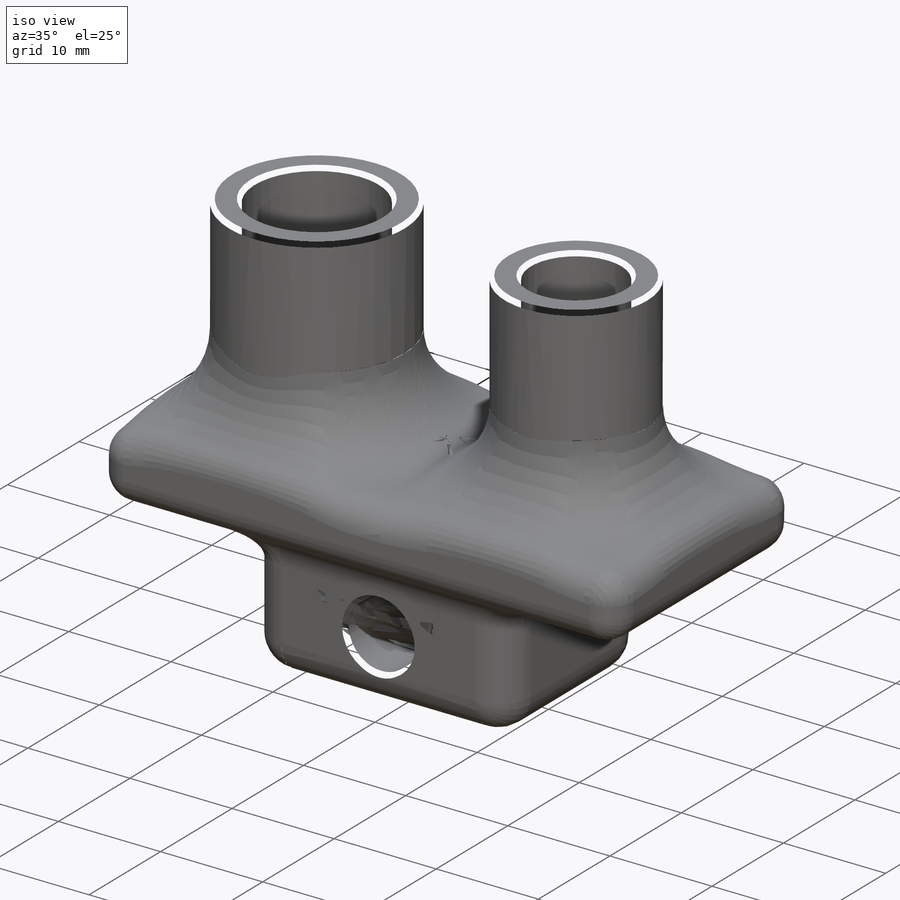
[diagram: iso view]
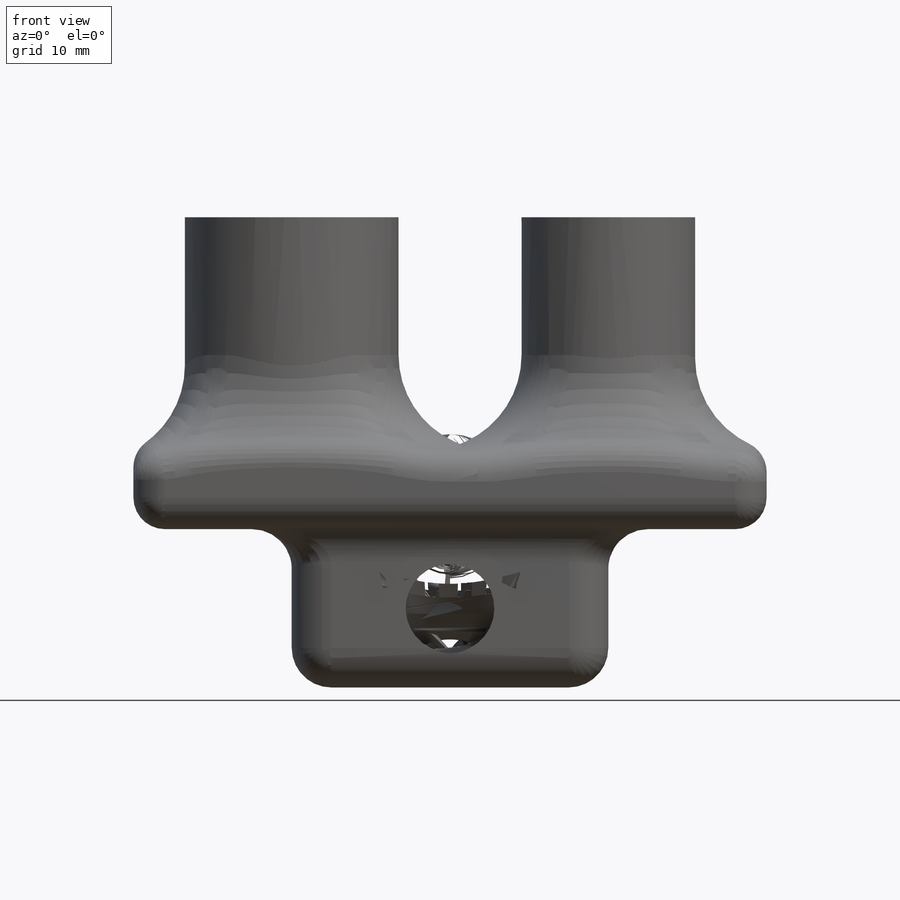
[diagram: front view]
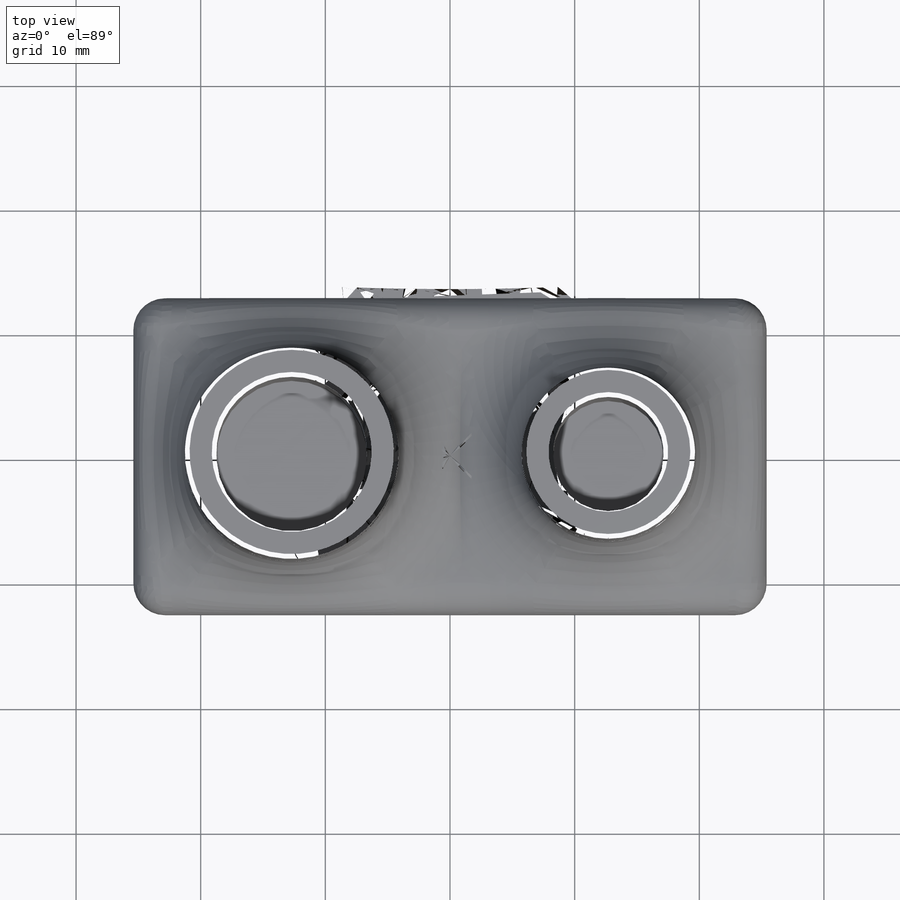
[diagram: top view]
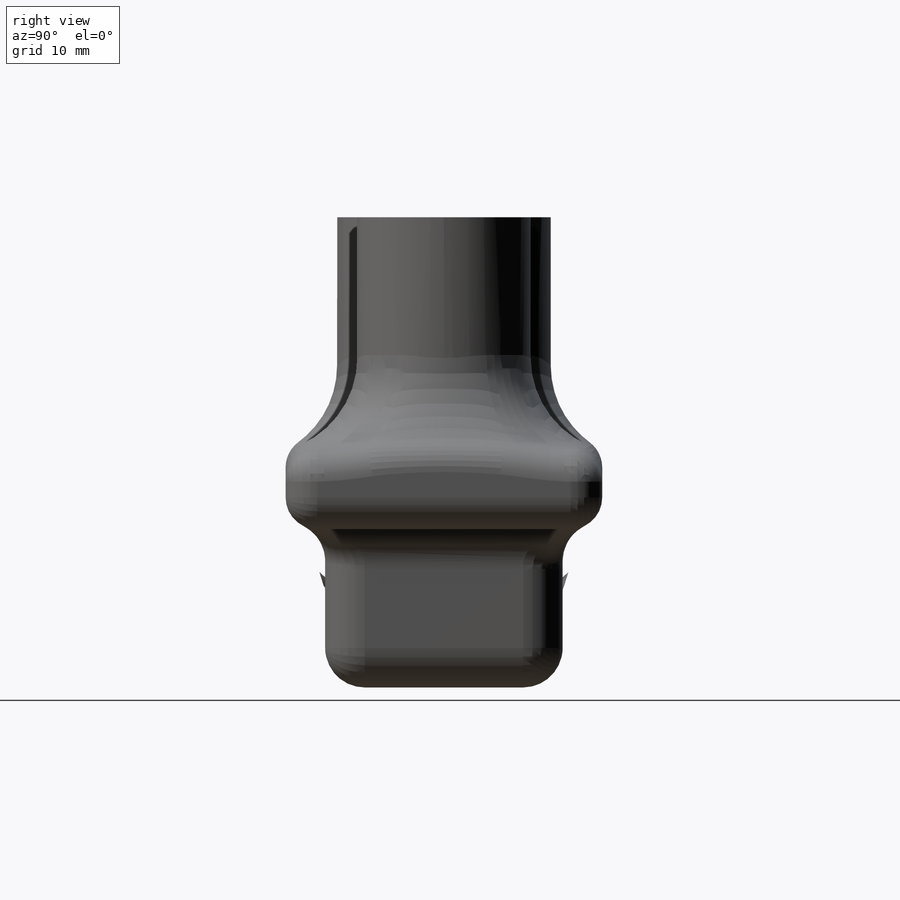
[diagram: right view]
SOLIDWORKS PART (.sldprt)
format: sldprt  version: not decoded by parser v0  size: 1,088,512 bytes
history: native  units: mm
features: fillet x8, sketch x4, extrude x3, material x1, cut_extrude x1 (+13 scaffold rows collapsed)
feature tree (30):
  scaffold x13  (default folders/planes/origin — collapsed)
  material  "ABS"
  sketch  "Sketch1"  dims[D1=8.8392mm D2=~43.957971mm D3=12.7mm D5=50.8mm D6=25.4mm D4=2.54mm]
  extrude  "Boss-Extrude1"  Depth=6.35mm
  extrude  "Boss-Extrude2"  [1 undecoded]
  sketch  "Sketch1<4>"  dims[D1=19.05mm]
  fillet  "Fillet1"  Radius=7.62mm
  fillet  "Fillet2"  Radius=2.54mm
  fillet  "Fillet3"  Radius=2.54mm
  sketch  "Sketch3"  dims[D3=6.35mm D1=25.4mm D2=12.7mm]
  extrude  "Boss-Extrude3"  Depth=19.05mm
  fillet  "Fillet4"  Radius=3.175mm
  fillet  "Fillet5"  Radius=3.175mm
  sketch  "Sketch4"  dims[D1=22.86mm D2=3.175mm]
  cut_extrude  "Cut-Extrude1"  Depth=1.5875mm
  fillet  "Fillet6"  Radius=0.381mm
  fillet  "Fillet7"  Radius=0.381mm
  fillet  "Fillet8"  Radius=0.381mm
decode coverage: 15 of 16 modeling features carry decoded parameters
note: ~ marks probable driven/reference dimensions
note: 1 parameter value undecoded
note: suppression state not decoded; provenance and decode notes live in map.json
